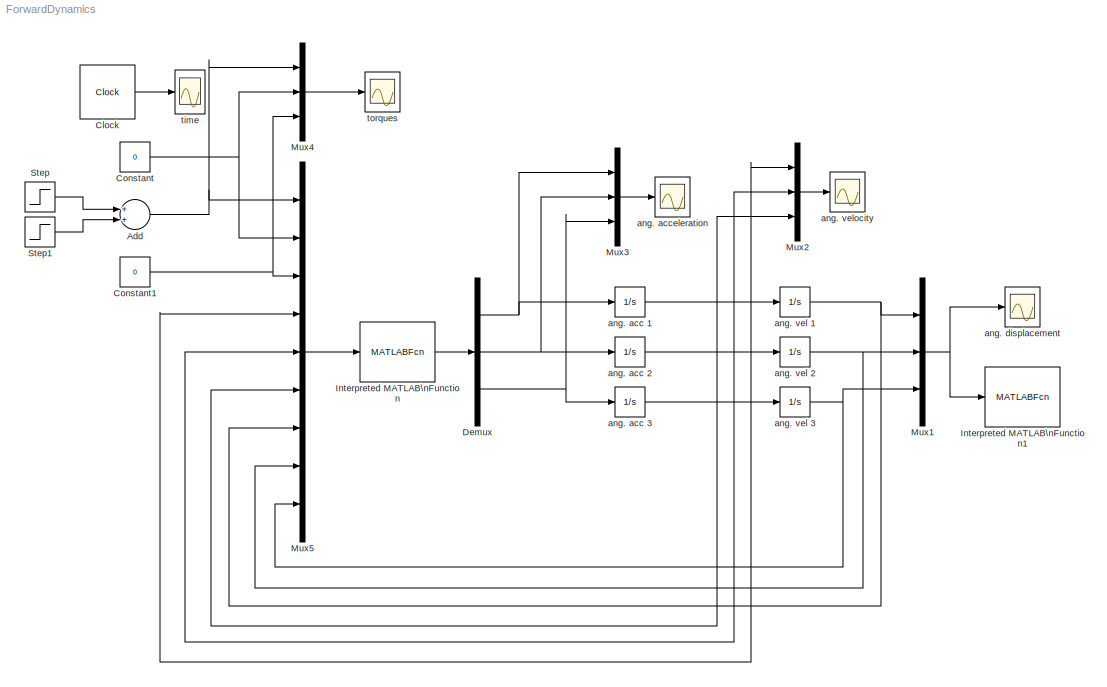
MODEL ForwardDynamics
KIND model
BLOCK [Sum] Add
  InputSameDT = off
  OutDataTypeStr = Inherit: Inherit via internal rule
  Ports = [2, 1]
  SID = 54
  SaturateOnIntegerOverflow = off
BLOCK [Clock] Clock
  SID = 12
BLOCK [Constant] Constant
  SID = 50
  Value = 0
BLOCK [Constant] Constant1
  SID = 52
  Value = 0
BLOCK [Demux] Demux
  DisplayOption = bar
  Outputs = 3
  Ports = [1, 3]
  SID = 24
BLOCK [MATLABFcn] Interpreted MATLAB\nFunction
  MATLABFcn = ForwardDyn
  OutputDimensions = 3
  OutputSignalType = real
  Ports = [1, 1]
  SID = 38
BLOCK [MATLABFcn] Interpreted MATLAB\nFunction1
  Commented = on
  MATLABFcn = simulateArm
  OutputDimensions = 0
  Ports = [1]
  SID = 48
BLOCK [Mux] Mux1
  DisplayOption = bar
  Inputs = 3
  Ports = [3, 1]
  SID = 25
BLOCK [Mux] Mux2
  DisplayOption = bar
  Inputs = 3
  Ports = [3, 1]
  SID = 28
BLOCK [Mux] Mux3
  DisplayOption = bar
  Inputs = 3
  Ports = [3, 1]
  SID = 30
BLOCK [Mux] Mux4
  DisplayOption = bar
  Inputs = 3
  Ports = [3, 1]
  SID = 33
BLOCK [Mux] Mux5
  DisplayOption = bar
  Inputs = 9
  Ports = [9, 1]
  SID = 39
BLOCK [Step] Step
  SID = 51
  SampleTime = 0
  Time = 0
BLOCK [Step] Step1
  After = -1
  SID = 53
  SampleTime = 0
BLOCK [Integrator] ang. acc 1
  Ports = [1, 1]
  SID = 14
BLOCK [Integrator] ang. acc 2
  Ports = [1, 1]
  SID = 16
BLOCK [Integrator] ang. acc 3
  Ports = [1, 1]
  SID = 45
BLOCK [Scope] ang. acceleration
  Ports = [1]
  SID = 31
  ScopeSpecificationString = Simulink.scopes.TimeScopeBlockCfg('CurrentConfiguration', extmgr.ConfigurationSet(extmgr.Configuration('Core','General UI',true),extmgr.Configuration('Core','Source UI',true),extmgr.Configuration('Sources','WiredSimulink',true,'DataLoggingVariableName','ScopeData4','DataLoggingSaveFormat','StructureWithTime','DataLoggingLimitDataPoints',true,'DataLoggingDecimation','1','DataLoggingDecimateData',tr...<+1702ch>
BLOCK [Scope] ang. displacement
  Ports = [1]
  SID = 26
  ScopeSpecificationString = Simulink.scopes.TimeScopeBlockCfg('CurrentConfiguration', extmgr.ConfigurationSet(extmgr.Configuration('Core','General UI',true),extmgr.Configuration('Core','Source UI',true),extmgr.Configuration('Sources','WiredSimulink',true,'DataLoggingVariableName','ScopeData2','DataLoggingSaveFormat','StructureWithTime','DataLoggingLimitDataPoints',true,'DataLoggingDecimation','1','DataLoggingDecimateData',tr...<+1707ch>
BLOCK [Integrator] ang. vel 1
  Ports = [1, 1]
  SID = 17
BLOCK [Integrator] ang. vel 2
  Ports = [1, 1]
  SID = 18
BLOCK [Integrator] ang. vel 3
  Ports = [1, 1]
  SID = 46
BLOCK [Scope] ang. velocity
  Ports = [1]
  SID = 27
  ScopeSpecificationString = Simulink.scopes.TimeScopeBlockCfg('CurrentConfiguration', extmgr.ConfigurationSet(extmgr.Configuration('Core','General UI',true),extmgr.Configuration('Core','Source UI',true),extmgr.Configuration('Sources','WiredSimulink',true,'DataLoggingVariableName','ScopeData3','DataLoggingSaveFormat','StructureWithTime','DataLoggingLimitDataPoints',true,'DataLoggingDecimation','1','DataLoggingDecimateData',tr...<+1707ch>
BLOCK [Scope] time
  Ports = [1]
  SID = 32
  ScopeSpecificationString = Simulink.scopes.TimeScopeBlockCfg('CurrentConfiguration', extmgr.ConfigurationSet(extmgr.Configuration('Core','General UI',true),extmgr.Configuration('Core','Source UI',true),extmgr.Configuration('Sources','WiredSimulink',true,'DataLoggingVariableName','ScopeData5','DataLoggingSaveFormat','StructureWithTime','DataLoggingLimitDataPoints',true,'DataLoggingDecimation','1','DataLoggingDecimateData',tr...<+1668ch>
BLOCK [Scope] torques
  Ports = [1]
  SID = 34
  ScopeSpecificationString = Simulink.scopes.TimeScopeBlockCfg('CurrentConfiguration', extmgr.ConfigurationSet(extmgr.Configuration('Core','General UI',true),extmgr.Configuration('Core','Source UI',true),extmgr.Configuration('Sources','WiredSimulink',true,'DataLoggingVariableName','ScopeData6','DataLoggingSaveFormat','StructureWithTime','DataLoggingLimitDataPoints',true,'DataLoggingDecimation','1','DataLoggingDecimateData',tr...<+1685ch>
NET Add:1 -> Mux4:1, Mux5:1
LINE Clock:1 -> time:1
NET Constant1:1 -> Mux4:3, Mux5:3
NET Constant:1 -> Mux4:2, Mux5:2
NET Demux:1 -> Mux3:1, ang. acc 1:1
NET Demux:2 -> Mux3:2, ang. acc 2:1
NET Demux:3 -> Mux3:3, ang. acc 3:1
LINE Interpreted MATLAB\nFunction:1 -> Demux:1
NET Mux1:1 -> Interpreted MATLAB\nFunction1:1, ang. displacement:1
LINE Mux2:1 -> ang. velocity:1
LINE Mux3:1 -> ang. acceleration:1
LINE Mux4:1 -> torques:1
LINE Mux5:1 -> Interpreted MATLAB\nFunction:1
LINE Step1:1 -> Add:2
LINE Step:1 -> Add:1
NET ang. acc 1:1 -> Mux2:1, Mux5:4, ang. vel 1:1
NET ang. acc 2:1 -> Mux2:2, Mux5:5, ang. vel 2:1
NET ang. acc 3:1 -> Mux2:3, Mux5:6, ang. vel 3:1
NET ang. vel 1:1 -> Mux1:1, Mux5:7
NET ang. vel 2:1 -> Mux1:2, Mux5:8
NET ang. vel 3:1 -> Mux1:3, Mux5:9
note: NET lines group one-source signal fan-out (src -> all destinations, sorted); 1:1 wires keep LINE
